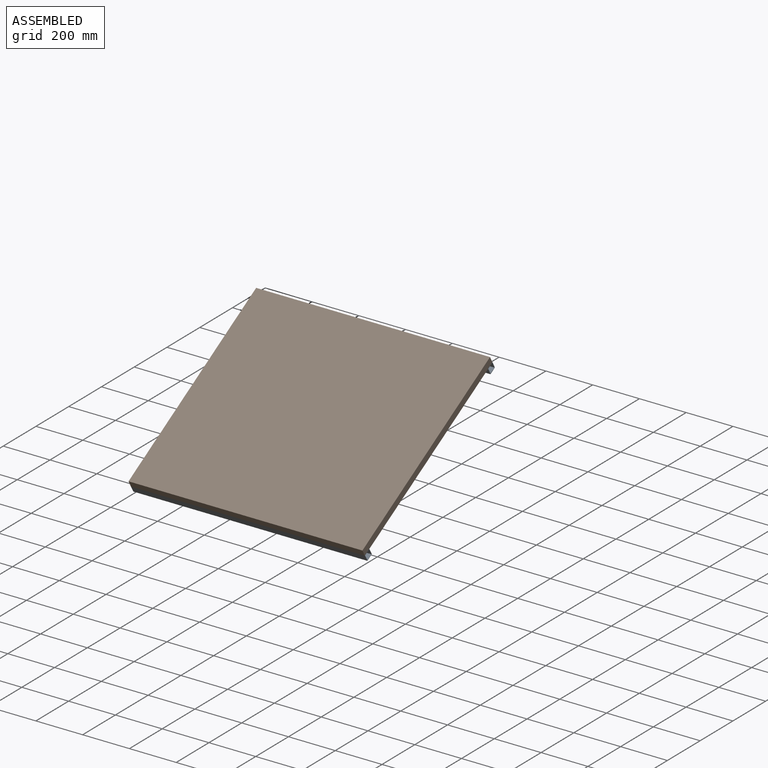
[diagram: assembled view]
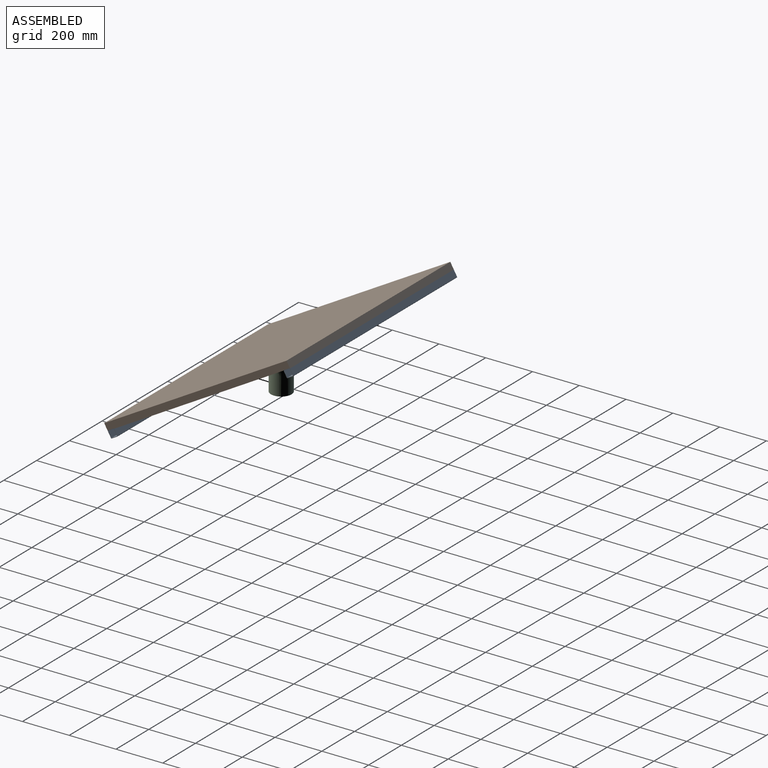
[diagram: assembled view, second angle]
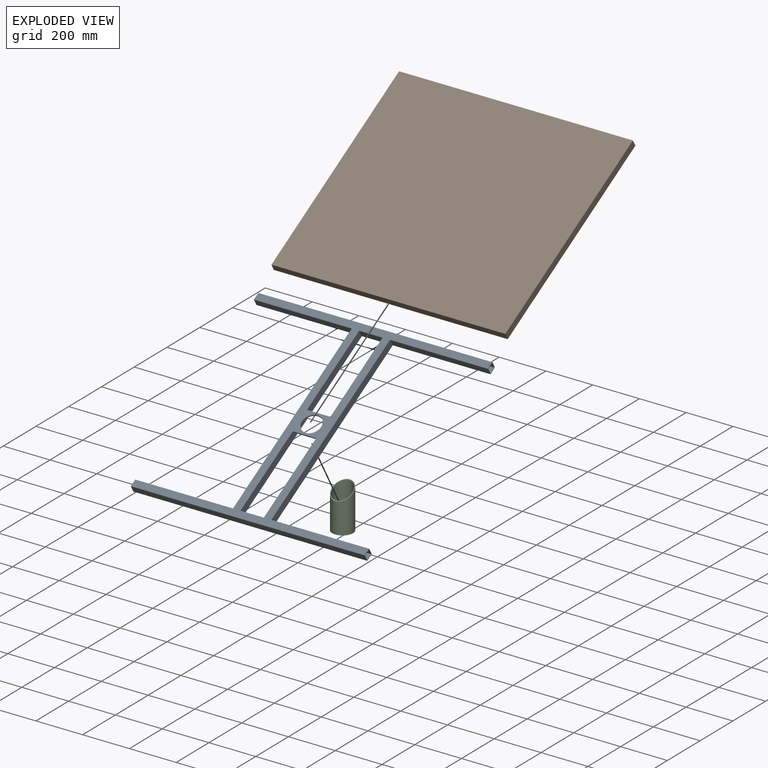
[diagram: exploded view]
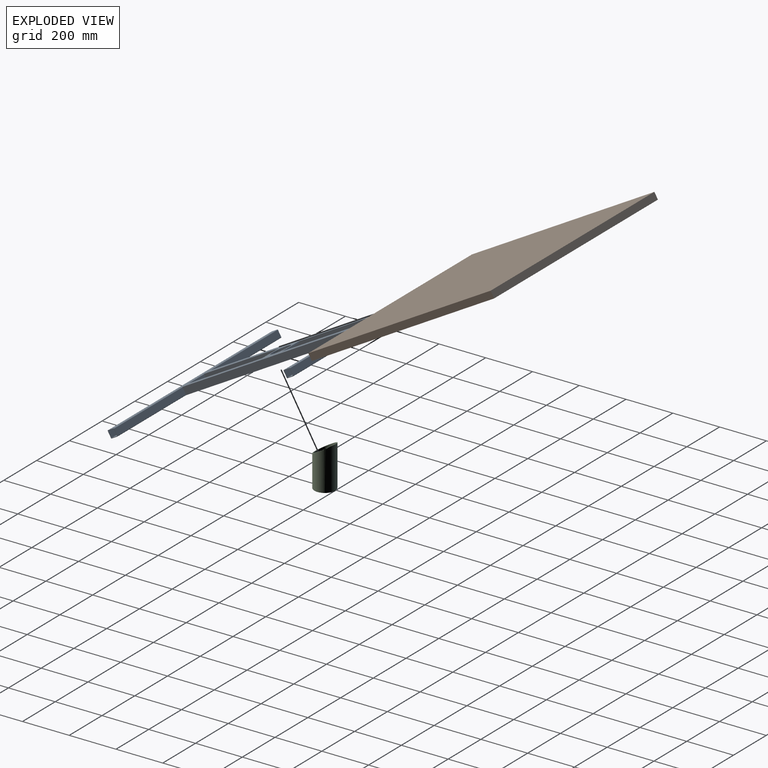
[diagram: exploded view, second angle]
ASSEMBLY  parts=3 mates=2
PART A: 99 faces, bbox 1000x900x32 mm
  f0: plane 840.6x32mm, normal (1,0,0), area 26155.5mm2, adj f1,f2,f5,f14,f33,f34,f51,f53
  f1: plane 1000x28mm, normal (0,0,-1), area 27980.8mm2, adj f0,f2,f3,f4,f18,f21,f22,f24
  f2: cylinder r=2mm len=100mm, axis (-1,0,0), area 314.2mm2, adj f0,f1,f5,f24
  f3: cylinder r=2mm len=418mm, axis (-1,0,0), area 1313.2mm2, adj f1,f6,f22,f35
  f4: cylinder r=2mm len=418mm, axis (-1,0,0), area 1313.2mm2, adj f1,f7,f21,f25
  f5: plane 100x28mm, normal (0,1,0), area 2800mm2, adj f0,f2,f14,f24
  f6: plane 418x28mm, normal (0,1,0), area 11704mm2, adj f3,f14,f22,f35
  f7: plane 418x28mm, normal (0,1,0), area 11704mm2, adj f4,f14,f21,f25
  f8: plane 1000x28mm, normal (0,0,1), area 27997.6mm2, adj f10,f11,f12,f13,f19,f20,f21,f22
  f9: plane 1000x28mm, normal (0,0,-1), area 27980.8mm2, adj f10,f11,f12,f19,f21,f22,f67,f71
  f10: plane 100x28mm, normal (0,-1,0), area 2800mm2, adj f8,f9,f71,f73
  f11: plane 418x28mm, normal (0,-1,0), area 11704mm2, adj f8,f9,f22,f77
  f12: plane 418x28mm, normal (0,-1,0), area 11704mm2, adj f8,f9,f21,f67
  f13: plane 28x27.96mm, normal (0,-1,0), area 782.8mm2, adj f8,f68,f69,f70
  f14: cylinder r=2mm len=1000mm, axis (-1,0,0), area 2967mm2, adj f0,f5,f6,f7,f15,f21,f22,f24
  f15: plane 1000x28mm, normal (0,0,1), area 28000mm2, adj f14,f16,f21,f22
  f16: cylinder r=2mm len=1000mm, axis (-1,0,0), area 3141.6mm2, adj f15,f17,f21,f22
  f17: plane 1000x28mm, normal (0,-1,0), area 28000mm2, adj f16,f18,f21,f22
  f18: cylinder r=2mm len=1000mm, axis (-1,0,0), area 3141.6mm2, adj f1,f17,f21,f22
  f19: plane 1000x28mm, normal (0,1,0), area 28000mm2, adj f8,f9,f21,f22
  f20: plane 28x27.96mm, normal (0,-1,0), area 782.8mm2, adj f8,f74,f75,f76
  f21: plane 32x32mm, normal (1,0,0), area 236.6mm2, adj f1,f4,f7,f8,f9,f12,f14,f15
  f22: plane 32x32mm, normal (-1,0,0), area 236.6mm2, adj f1,f3,f6,f8,f9,f11,f14,f15
  f23: plane 32x0.04mm, normal (0,1,0), area 1.4mm2, adj f24,f25,f26,f59
  f24: plane 840.6x32mm, normal (-1,0,0), area 26155.5mm2, adj f1,f2,f5,f14,f23,f26,f51,f53
  f25: plane 840.6x32mm, normal (1,0,0), area 26755.5mm2, adj f1,f4,f7,f14,f23,f26,f57,f58
  f26: plane 840.6x32mm, normal (0,0,-1), area 26899.2mm2, adj f23,f24,f25,f65
  f27: plane 27.96x0.3mm, normal (-1,0,0), area 8.4mm2, adj f29,f32,f61,f63
  f28: plane 27.96x0.3mm, normal (1,0,0), area 8.4mm2, adj f29,f32,f61,f63
  f29: plane 28x0.3mm, normal (0,0,-1), area 8.4mm2, adj f27,f28,f32,f61
  f30: plane 28x0.3mm, normal (1,0,0), area 8.4mm2, adj f32,f56,f62,f63
  f31: plane 28x0.3mm, normal (-1,0,0), area 8.4mm2, adj f32,f55,f56,f63
  f32: plane 32x28mm, normal (0,1,0), area 113.2mm2, adj f27,f28,f29,f30,f31,f56,f63
  f33: plane 32x0.04mm, normal (0,1,0), area 1.4mm2, adj f0,f34,f35,f59
  f34: plane 840.6x32mm, normal (0,0,-1), area 26899.2mm2, adj f0,f33,f35,f66
  f35: plane 840.6x32mm, normal (-1,0,0), area 26755.5mm2, adj f1,f3,f6,f14,f33,f34,f50,f52
  f36: plane 28x0.3mm, normal (0,0,-1), area 8.4mm2, adj f37,f38,f41,f48
  f37: plane 27.96x0.3mm, normal (-1,0,0), area 8.4mm2, adj f36,f41,f48,f63
  f38: plane 27.96x0.3mm, normal (1,0,0), area 8.4mm2, adj f36,f41,f48,f63
  f39: plane 28x0.3mm, normal (1,0,0), area 8.4mm2, adj f41,f55,f56,f63
  f40: plane 28x0.3mm, normal (-1,0,0), area 8.4mm2, adj f41,f54,f56,f63
  f41: plane 32x28mm, normal (0,1,0), area 113.2mm2, adj f36,f37,f38,f39,f40,f56,f63
  f42: plane 32x32mm, normal (-1,0,0), area 236.6mm2, adj f44,f45,f46,f47,f49,f50,f52,f54
  f43: plane 32x32mm, normal (1,0,0), area 236.6mm2, adj f44,f45,f46,f47,f49,f56,f57,f58
  f44: plane 1000x28mm, normal (0,0,1), area 28000mm2, adj f42,f43,f45,f58
  f45: cylinder r=2mm len=1000mm, axis (-1,0,0), area 3141.6mm2, adj f42,f43,f44,f46
  f46: plane 1000x28mm, normal (0,1,0), area 28000mm2, adj f42,f43,f45,f47
  f47: cylinder r=2mm len=1000mm, axis (-1,0,0), area 3141.6mm2, adj f42,f43,f46,f59
  f48: plane 28x27.96mm, normal (0,1,0), area 782.8mm2, adj f36,f37,f38,f63
  f49: plane 1000x28mm, normal (0,-1,0), area 28000mm2, adj f42,f43,f56,f63
  f50: plane 418x28mm, normal (0,-1,0), area 11704mm2, adj f35,f42,f52,f58
  f51: plane 100x28mm, normal (0,-1,0), area 2800mm2, adj f0,f24,f53,f58
  f52: cylinder r=2mm len=418mm, axis (-1,0,0), area 1313.2mm2, adj f35,f42,f50,f59
  f53: cylinder r=2mm len=100mm, axis (-1,0,0), area 314.2mm2, adj f0,f24,f51,f59
  f54: plane 418x28mm, normal (0,1,0), area 11704mm2, adj f40,f42,f56,f63
  f55: plane 100x28mm, normal (0,1,0), area 2800mm2, adj f31,f39,f56,f63
  f56: plane 1000x28mm, normal (0,0,-1), area 27980.8mm2, adj f30,f31,f32,f39,f40,f41,f42,f43
  f57: plane 418x28mm, normal (0,-1,0), area 11704mm2, adj f25,f43,f58,f60
  f58: cylinder r=2mm len=1000mm, axis (-1,0,0), area 2967mm2, adj f0,f24,f25,f35,f42,f43,f44,f50
  f59: plane 1000x28mm, normal (0,0,-1), area 27980.8mm2, adj f0,f23,f24,f25,f33,f35,f42,f43
  f60: cylinder r=2mm len=418mm, axis (-1,0,0), area 1313.2mm2, adj f25,f43,f57,f59
  f61: plane 28x27.96mm, normal (0,1,0), area 782.8mm2, adj f27,f28,f29,f63
  f62: plane 418x28mm, normal (0,1,0), area 11704mm2, adj f30,f43,f56,f63
  f63: plane 1000x28mm, normal (0,0,1), area 27997.6mm2, adj f27,f28,f30,f31,f32,f37,f38,f39
  f64: plane 839.18x164mm, normal (0,0,1), area 58426.5mm2, adj f0,f14,f24,f25,f35,f58,f79,f80
  f65: plane 32x0.04mm, normal (0,-1,0), area 1.4mm2, adj f1,f24,f25,f26
  f66: plane 32x0.04mm, normal (0,-1,0), area 1.4mm2, adj f0,f1,f34,f35
  f67: plane 28x0.3mm, normal (1,0,0), area 8.4mm2, adj f8,f9,f12,f72
  f68: plane 28x0.3mm, normal (0,0,-1), area 8.4mm2, adj f13,f69,f70,f72
  f69: plane 27.96x0.3mm, normal (1,0,0), area 8.4mm2, adj f8,f13,f68,f72
  f70: plane 27.96x0.3mm, normal (-1,0,0), area 8.4mm2, adj f8,f13,f68,f72
  f71: plane 28x0.3mm, normal (-1,0,0), area 8.4mm2, adj f8,f9,f10,f72
  f72: plane 32x28mm, normal (0,-1,0), area 113.2mm2, adj f8,f9,f67,f68,f69,f70,f71
  f73: plane 28x0.3mm, normal (1,0,0), area 8.4mm2, adj f8,f9,f10,f78
  f74: plane 27.96x0.3mm, normal (1,0,0), area 8.4mm2, adj f8,f20,f76,f78
  f75: plane 27.96x0.3mm, normal (-1,0,0), area 8.4mm2, adj f8,f20,f76,f78
  f76: plane 28x0.3mm, normal (0,0,-1), area 8.4mm2, adj f20,f74,f75,f78
  f77: plane 28x0.3mm, normal (-1,0,0), area 8.4mm2, adj f8,f9,f11,f78
  f78: plane 32x28mm, normal (0,-1,0), area 113.2mm2, adj f8,f9,f73,f74,f75,f76,f77
  f79: plane 100x6mm, normal (0,1,0), area 600mm2, adj f0,f24,f64,f81
  f80: plane 100x6mm, normal (0,-1,0), area 600mm2, adj f0,f24,f64,f81
  f81: plane 100x100mm, normal (0,0,-1), area 4719mm2, adj f0,f24,f79,f80,f82
  f82: cylinder r=41mm len=82mm, axis (0,0,1), area 1545.7mm2, adj f64,f81
  f83: cylinder r=2mm len=28mm, axis (-1,0,0), area 1.2mm2, adj f84,f86,f87,f88
  f84: plane 28x27.96mm, normal (0,-1,0), area 782.8mm2, adj f83,f85,f86,f87
  f85: plane 836x28mm, normal (0,0,-1), area 23408mm2, adj f84,f86,f87,f89
  f86: plane 836x28mm, normal (1,0,0), area 23408mm2, adj f83,f84,f85,f88,f89,f90
  f87: plane 836x28mm, normal (-1,0,0), area 23408mm2, adj f83,f84,f85,f88,f89,f90
  f88: plane 836x28mm, normal (0,0,1), area 23408mm2, adj f83,f86,f87,f90
  f89: plane 28x27.96mm, normal (0,1,0), area 782.8mm2, adj f85,f86,f87,f90
  f90: cylinder r=2mm len=28mm, axis (-1,0,0), area 1.2mm2, adj f86,f87,f88,f89
  f91: plane 836x28mm, normal (0,0,1), area 23408mm2, adj f93,f94,f96,f98
  f92: plane 836x28mm, normal (0,0,-1), area 23408mm2, adj f93,f94,f95,f97
  f93: plane 836x28mm, normal (-1,0,0), area 23408mm2, adj f91,f92,f95,f96,f97,f98
  f94: plane 836x28mm, normal (1,0,0), area 23408mm2, adj f91,f92,f95,f96,f97,f98
  f95: plane 28x27.96mm, normal (0,-1,0), area 782.8mm2, adj f92,f93,f94,f96
  f96: cylinder r=2mm len=28mm, axis (-1,0,0), area 1.2mm2, adj f91,f93,f94,f95
  f97: plane 28x27.96mm, normal (0,1,0), area 782.8mm2, adj f92,f93,f94,f98
  f98: cylinder r=2mm len=28mm, axis (-1,0,0), area 1.2mm2, adj f91,f93,f94,f97
PART B: 11 faces, bbox 1000x900x30 mm
  f0: plane 1000x30mm, normal (0,1,0), area 30000mm2, adj f1,f3,f4,f5
  f1: plane 900x30mm, normal (-1,0,0), area 27000mm2, adj f0,f2,f4,f5
  f2: plane 1000x30mm, normal (0,-1,0), area 30000mm2, adj f1,f3,f4,f5
  f3: plane 900x30mm, normal (1,0,0), area 27000mm2, adj f0,f2,f4,f5
  f4: plane 1000x900mm, normal (0,0,1), area 900000mm2, adj f0,f1,f2,f3
  f5: plane 1000x900mm, normal (0,0,-1), area 92500mm2, adj f0,f1,f2,f3,f6,f7,f8,f9
  f6: plane 850x25mm, normal (1,0,0), area 21250mm2, adj f5,f7,f9,f10
  f7: plane 950x25mm, normal (0,-1,0), area 23750mm2, adj f5,f6,f8,f10
  f8: plane 850x25mm, normal (-1,0,0), area 21250mm2, adj f5,f7,f9,f10
  f9: plane 950x25mm, normal (0,1,0), area 23750mm2, adj f5,f6,f8,f10
  f10: plane 950x850mm, normal (0,0,-1), area 807500mm2, adj f6,f7,f8,f9
PART C: 4 faces, bbox 88.5x88.5x180.3 mm
  f0: cylinder r=41mm len=178.41mm, axis (0,0,-1), area 39777.5mm2, adj f1,f3
  f1: plane 88.5x88.5mm, normal (0,0,-1), area 870.4mm2, adj f0,f2
  f2: cylinder r=44.25mm len=180.31mm, axis (0,0,-1), area 42930.6mm2, adj f1,f3
  f3: plane 88.5x88.5mm, normal (0,-0.5,0.87), area 1005.1mm2, adj f0,f2
PLACE A rot(axis=(1,0,0),30deg) t=(-33.33,-31.94,-63.52)mm
PLACE B rot(axis=(1,0,0),30deg) t=(-33.33,-38.94,-51.4)mm
PLACE C t=(-33.33,-36.92,-209.31)mm
MATE fastened A.f82 <-> C.f3  axis (0,0.5,-0.87) through (-33.33,-36.92,-54.9)mm
MATE planar B.f2 <-> A.f17  axis (0,-0.87,-0.5) through (-33.33,-428.65,-276.4)mm
